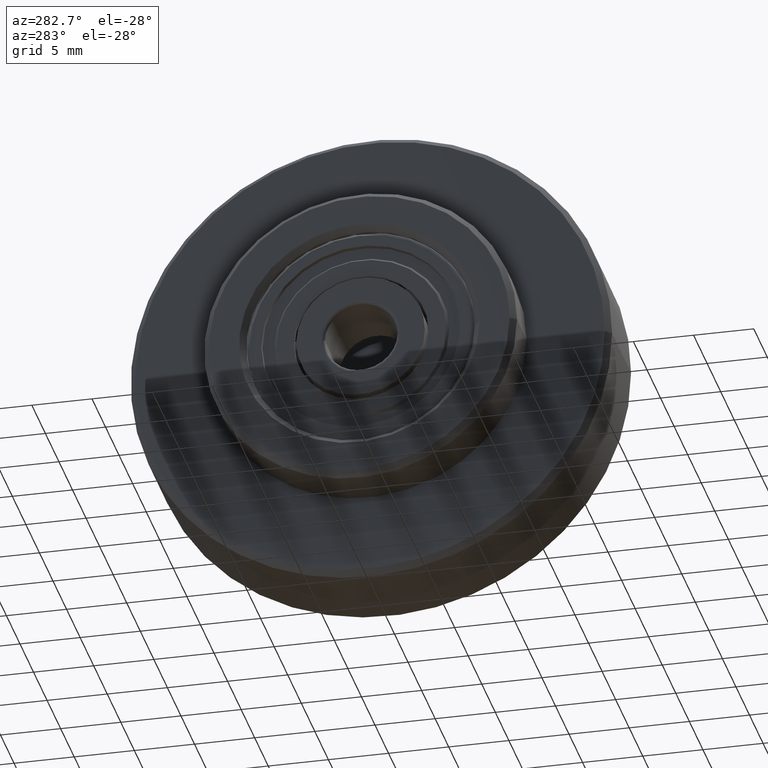
[diagram: clean part render]
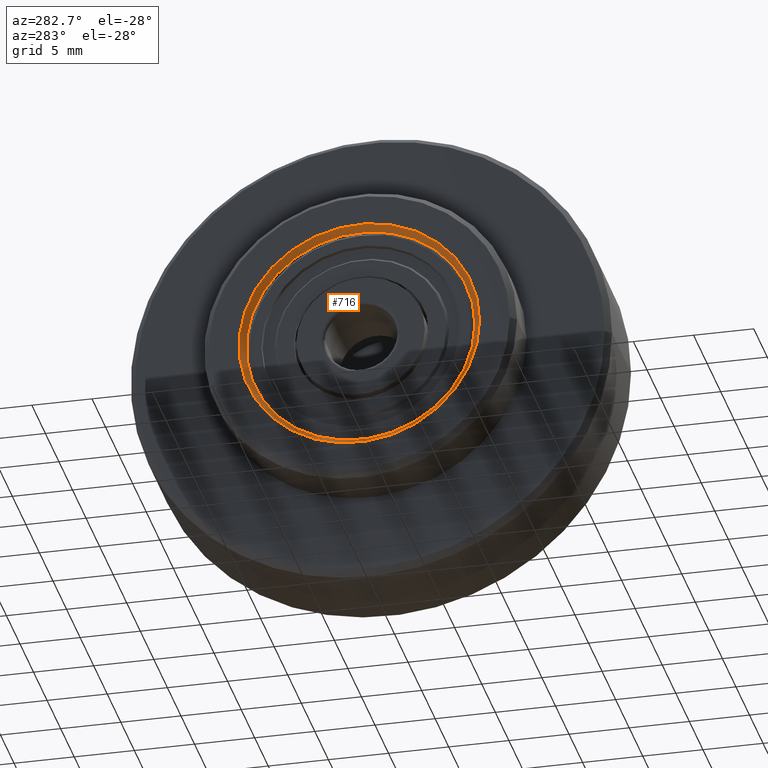
[diagram: same view with one face highlighted and labeled with its STEP entity id]
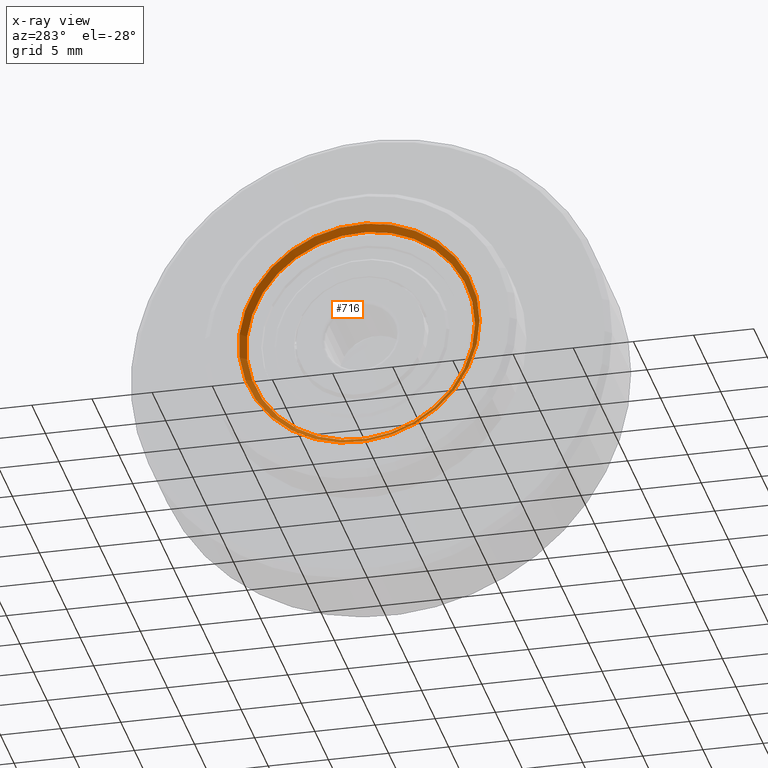
[diagram: x-ray of the same camera — body ghosted, the highlighted face saturated]
A machine part, auxiliary view. The second image highlights one B-rep face of the part: STEP entity #716.
The next image is the same camera in x-ray: the body ghosted, the highlighted face saturated — about 0% of this face is hidden behind the body in this view.
In plain terms, the highlighted conical surface has half-angle 45 deg.
Its self-contained STEP definition (entity closure, byte-faithful):
#97=CONICAL_SURFACE('',#823,9.94999999996016,45.0000000000001);
#112=FACE_BOUND('',#248,.T.);
#176=FACE_OUTER_BOUND('',#247,.T.);
#247=EDGE_LOOP('',(#577));
#248=EDGE_LOOP('',(#578));
#360=CIRCLE('',#822,9.99999999995997);
#361=CIRCLE('',#824,9.49999999996201);
#426=VERTEX_POINT('',#1247);
#427=VERTEX_POINT('',#1250);
#500=EDGE_CURVE('',#426,#426,#360,.T.);
#501=EDGE_CURVE('',#427,#427,#361,.T.);
#577=ORIENTED_EDGE('',*,*,#501,.T.);
#578=ORIENTED_EDGE('',*,*,#500,.F.);
#716=ADVANCED_FACE('',(#176,#112),#97,.F.);
#822=AXIS2_PLACEMENT_3D('',#1248,#983,#984);
#823=AXIS2_PLACEMENT_3D('',#1249,#985,#986);
#824=AXIS2_PLACEMENT_3D('',#1251,#987,#988);
#983=DIRECTION('center_axis',(1.,0.,0.));
#984=DIRECTION('ref_axis',(0.,1.,0.));
#985=DIRECTION('center_axis',(-1.,1.12431333795088E-016,1.4129073384181E-015));
#986=DIRECTION('ref_axis',(9.12552125385392E-016,0.813826036051075,0.581108581114919));
#987=DIRECTION('center_axis',(1.,0.,0.));
#988=DIRECTION('ref_axis',(0.,1.,0.));
#1247=CARTESIAN_POINT('',(-17.999999999928,-9.99999999995997,0.));
#1248=CARTESIAN_POINT('Origin',(-17.999999999928,0.,0.));
#1249=CARTESIAN_POINT('Origin',(-17.9499999999282,1.11022302462516E-015,
-2.22044604925031E-015));
#1250=CARTESIAN_POINT('',(-17.49999999993,-9.49999999996201,0.));
#1251=CARTESIAN_POINT('Origin',(-17.49999999993,0.,0.));